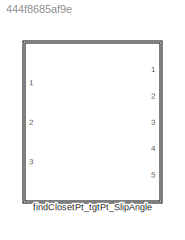
MODEL slx_444f8685af9e
KIND library
CONFIG AbsTol = auto
CONFIG EnableMultiTasking = off
CONFIG FixedStep = auto
CONFIG MaxStep = auto
CONFIG MinStep = auto
CONFIG RelTol = 1e-3
CONFIG SampleTimeConstraint = Unconstrained
CONFIG Solver = VariableStepAuto
CONFIG SolverName = VariableStepAuto
CONFIG StartTime = 0.0
CONFIG StopTime = 10.0
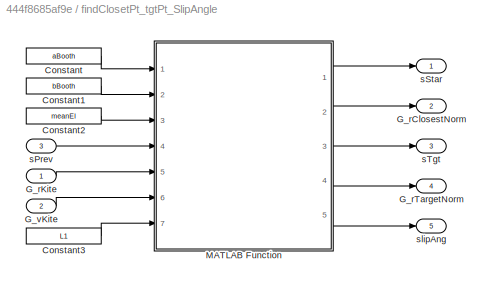
BLOCK [SubSystem] findClosetPt_tgtPt_SlipAngle
  Ports = [3, 5]
  RequestExecContextInheritance = off
BLOCK [Constant] findClosetPt_tgtPt_SlipAngle/Constant
  Value = aBooth
BLOCK [Constant] findClosetPt_tgtPt_SlipAngle/Constant1
  Value = bBooth
BLOCK [Constant] findClosetPt_tgtPt_SlipAngle/Constant2
  Value = meanEl
BLOCK [Constant] findClosetPt_tgtPt_SlipAngle/Constant3
  Value = L1
BLOCK [Outport] findClosetPt_tgtPt_SlipAngle/G_rClosestNorm
  Port = 2
  PortDimensions = 3
BLOCK [Inport] findClosetPt_tgtPt_SlipAngle/G_rKite
BLOCK [Outport] findClosetPt_tgtPt_SlipAngle/G_rTargetNorm
  Port = 4
  PortDimensions = 3
BLOCK [Inport] findClosetPt_tgtPt_SlipAngle/G_vKite
  Port = 2
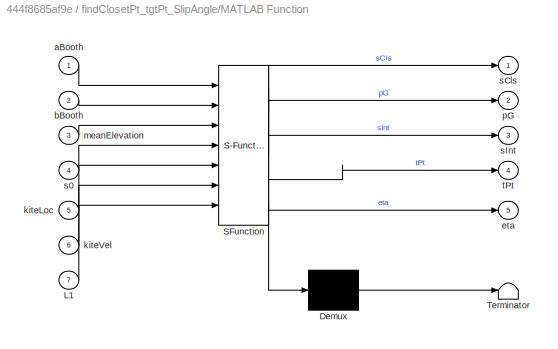
BLOCK [SubSystem] findClosetPt_tgtPt_SlipAngle/MATLAB Function
  ErrorFcn = Stateflow.Translate.translate
  PermitHierarchicalResolution = ExplicitOnly
  Ports = [7, 5]
  RequestExecContextInheritance = off
  SFBlockType = MATLAB Function
  TreatAsAtomicUnit = on
BLOCK [Demux] findClosetPt_tgtPt_SlipAngle/MATLAB Function/ Demux 
  Outputs = 1
  Ports = [1, 1]
BLOCK [S-Function] findClosetPt_tgtPt_SlipAngle/MATLAB Function/ SFunction 
  EnableBusSupport = off
  FunctionName = sf_sfun
  PortCounts = [7 6]
  Ports = [7, 6]
  SFcnIsStateOwnerBlock = off
  SFunctionDeploymentMode = off
  Tag = Stateflow S-Function 2
BLOCK [Terminator] findClosetPt_tgtPt_SlipAngle/MATLAB Function/ Terminator 
BLOCK [Inport] findClosetPt_tgtPt_SlipAngle/MATLAB Function/L1
  Port = 7
BLOCK [Inport] findClosetPt_tgtPt_SlipAngle/MATLAB Function/aBooth
BLOCK [Inport] findClosetPt_tgtPt_SlipAngle/MATLAB Function/bBooth
  Port = 2
BLOCK [Outport] findClosetPt_tgtPt_SlipAngle/MATLAB Function/eta
  Port = 5
BLOCK [Inport] findClosetPt_tgtPt_SlipAngle/MATLAB Function/kiteLoc
  Port = 5
BLOCK [Inport] findClosetPt_tgtPt_SlipAngle/MATLAB Function/kiteVel
  Port = 6
BLOCK [Inport] findClosetPt_tgtPt_SlipAngle/MATLAB Function/meanElevation
  Port = 3
BLOCK [Outport] findClosetPt_tgtPt_SlipAngle/MATLAB Function/pG
  Port = 2
BLOCK [Inport] findClosetPt_tgtPt_SlipAngle/MATLAB Function/s0
  Port = 4
BLOCK [Outport] findClosetPt_tgtPt_SlipAngle/MATLAB Function/sCls
BLOCK [Outport] findClosetPt_tgtPt_SlipAngle/MATLAB Function/sInt
  Port = 3
BLOCK [Outport] findClosetPt_tgtPt_SlipAngle/MATLAB Function/tPt
  Port = 4
BLOCK [Inport] findClosetPt_tgtPt_SlipAngle/sPrev
  Port = 3
BLOCK [Outport] findClosetPt_tgtPt_SlipAngle/sStar
  PortDimensions = 1
BLOCK [Outport] findClosetPt_tgtPt_SlipAngle/sTgt
  Port = 3
  PortDimensions = 1
BLOCK [Outport] findClosetPt_tgtPt_SlipAngle/slipAng
  Port = 5
  PortDimensions = 1
LINE findClosetPt_tgtPt_SlipAngle/Constant1:1 -> findClosetPt_tgtPt_SlipAngle/MATLAB Function:2
LINE findClosetPt_tgtPt_SlipAngle/Constant2:1 -> findClosetPt_tgtPt_SlipAngle/MATLAB Function:3
LINE findClosetPt_tgtPt_SlipAngle/Constant3:1 -> findClosetPt_tgtPt_SlipAngle/MATLAB Function:7
LINE findClosetPt_tgtPt_SlipAngle/Constant:1 -> findClosetPt_tgtPt_SlipAngle/MATLAB Function:1
LINE findClosetPt_tgtPt_SlipAngle/G_rKite:1 -> findClosetPt_tgtPt_SlipAngle/MATLAB Function:5
LINE findClosetPt_tgtPt_SlipAngle/G_vKite:1 -> findClosetPt_tgtPt_SlipAngle/MATLAB Function:6
LINE findClosetPt_tgtPt_SlipAngle/MATLAB Function:1 -> findClosetPt_tgtPt_SlipAngle/sStar:1
LINE findClosetPt_tgtPt_SlipAngle/MATLAB Function:2 -> findClosetPt_tgtPt_SlipAngle/G_rClosestNorm:1
LINE findClosetPt_tgtPt_SlipAngle/MATLAB Function:3 -> findClosetPt_tgtPt_SlipAngle/sTgt:1
LINE findClosetPt_tgtPt_SlipAngle/MATLAB Function:4 -> findClosetPt_tgtPt_SlipAngle/G_rTargetNorm:1
LINE findClosetPt_tgtPt_SlipAngle/MATLAB Function:5 -> findClosetPt_tgtPt_SlipAngle/slipAng:1
LINE findClosetPt_tgtPt_SlipAngle/sPrev:1 -> findClosetPt_tgtPt_SlipAngle/MATLAB Function:4
CHART findClosetPt_tgtPt_SlipAngle/MATLAB Function states=1 transitions=1
  STATE_LABEL 'eML_blk_kernel()'
  STATE_LABEL 'SCRIPT:\nfunction [sCls,pG,sInt,tPt,eta] = findIntersectionPoint(aBooth,bBooth,...\n    meanElevation,s0,kiteLoc,kiteVel,L1)\n\n[sCls,pG,sInt,tPt,eta] = findIntersectionPoint(aBooth,bBooth,...\n    meanElevation,s0,kiteLoc,kiteVel,L1);\n\nend'
CHART  states=0 transitions=0
